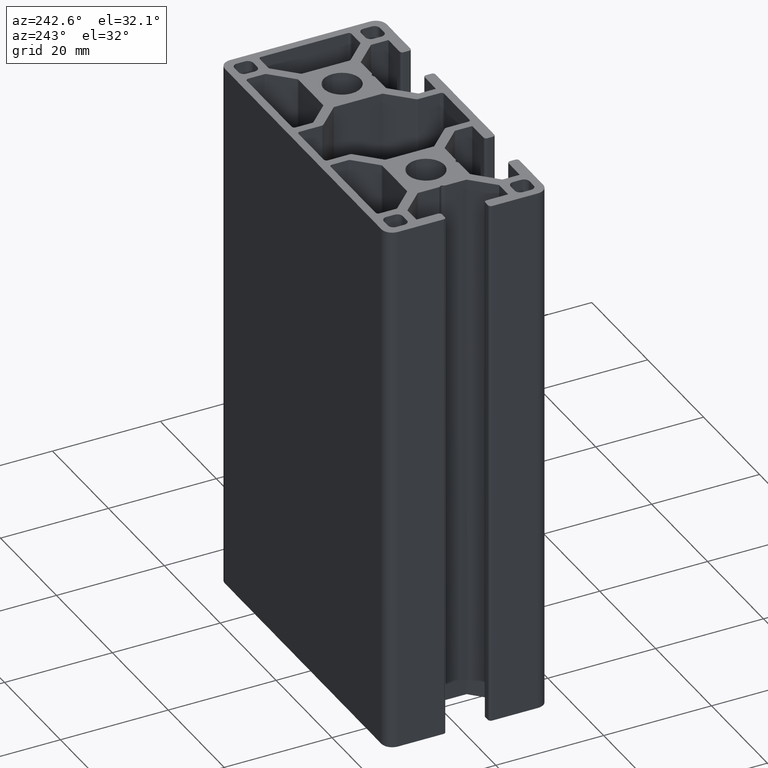
[diagram: clean part render]
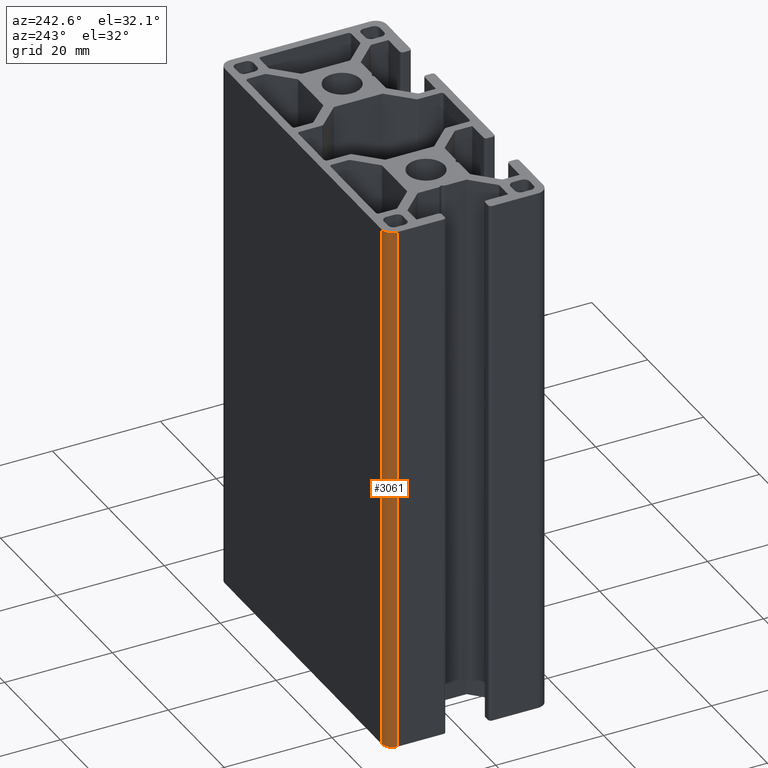
[diagram: same view with one face highlighted and labeled with its STEP entity id]
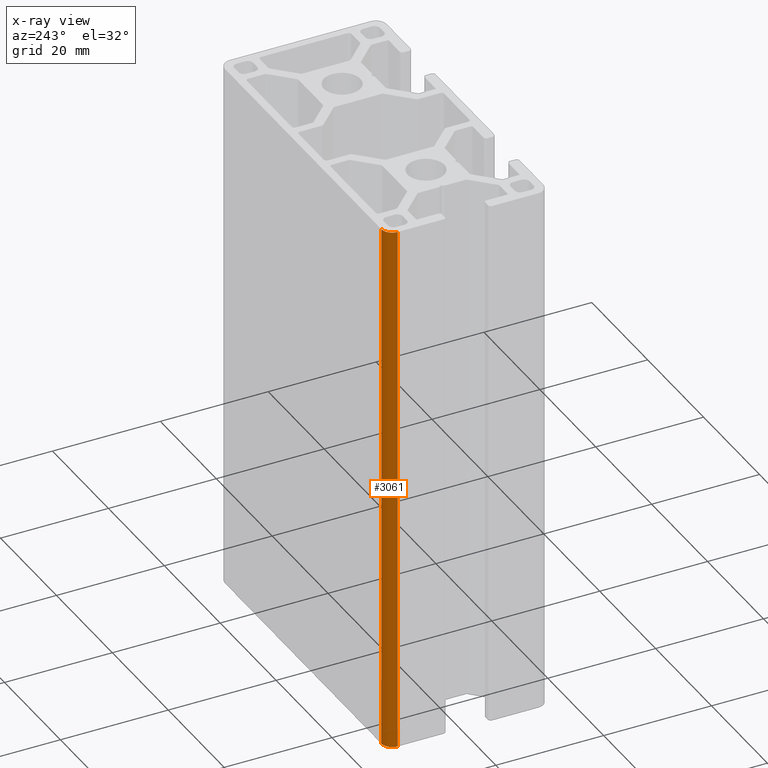
[diagram: x-ray of the same camera — body ghosted, the highlighted face saturated]
A machine part, auxiliary view. The second image highlights one B-rep face of the part: STEP entity #3061.
The next image is the same camera in x-ray: the body ghosted, the highlighted face saturated — about 0% of this face is hidden behind the body in this view.
In plain terms, the highlighted cylindrical surface (edge-blend (fillet) strip) has radius 2 mm, axis along (0, 0, 1).
Its self-contained STEP definition (entity closure, byte-faithful):
#152=CIRCLE('',#3326,2.00000000000001);
#155=CIRCLE('',#3333,2.00000000000001);
#215=CYLINDRICAL_SURFACE('',#3332,2.00000000000001);
#363=FACE_OUTER_BOUND('',#526,.T.);
#526=EDGE_LOOP('',(#2659,#2660,#2661,#2662));
#848=LINE('',#5054,#1173);
#861=LINE('',#5090,#1186);
#1173=VECTOR('',#4152,100.);
#1186=VECTOR('',#4191,100.);
#1475=VERTEX_POINT('',#5051);
#1476=VERTEX_POINT('',#5053);
#1484=VERTEX_POINT('',#5077);
#1486=VERTEX_POINT('',#5089);
#1908=EDGE_CURVE('',#1476,#1475,#848,.T.);
#1922=EDGE_CURVE('',#1475,#1484,#152,.T.);
#1927=EDGE_CURVE('',#1486,#1484,#861,.T.);
#1928=EDGE_CURVE('',#1476,#1486,#155,.T.);
#2659=ORIENTED_EDGE('',*,*,#1922,.T.);
#2660=ORIENTED_EDGE('',*,*,#1927,.F.);
#2661=ORIENTED_EDGE('',*,*,#1928,.F.);
#2662=ORIENTED_EDGE('',*,*,#1908,.T.);
#3061=ADVANCED_FACE('',(#363),#215,.T.);
#3326=AXIS2_PLACEMENT_3D('',#5079,#4175,#4176);
#3332=AXIS2_PLACEMENT_3D('',#5088,#4189,#4190);
#3333=AXIS2_PLACEMENT_3D('',#5091,#4192,#4193);
#4152=DIRECTION('',(0.,0.,1.));
#4175=DIRECTION('center_axis',(0.,0.,-1.));
#4176=DIRECTION('ref_axis',(-2.22044604925031E-15,1.,0.));
#4189=DIRECTION('center_axis',(0.,0.,1.));
#4190=DIRECTION('ref_axis',(-2.22044604925031E-15,1.,0.));
#4191=DIRECTION('',(0.,0.,1.));
#4192=DIRECTION('center_axis',(0.,0.,-1.));
#4193=DIRECTION('ref_axis',(-2.22044604925031E-15,1.,0.));
#5051=CARTESIAN_POINT('',(-30.00000333,13.00000333,100.));
#5053=CARTESIAN_POINT('',(-30.00000333,13.00000333,0.));
#5054=CARTESIAN_POINT('',(-30.00000333,13.00000333,0.));
#5077=CARTESIAN_POINT('',(-28.00000333,15.00000333,100.));
#5079=CARTESIAN_POINT('Origin',(-28.00000333,13.00000333,100.));
#5088=CARTESIAN_POINT('Origin',(-28.00000333,13.00000333,0.));
#5089=CARTESIAN_POINT('',(-28.00000333,15.00000333,0.));
#5090=CARTESIAN_POINT('',(-28.00000333,15.00000333,0.));
#5091=CARTESIAN_POINT('Origin',(-28.00000333,13.00000333,0.));